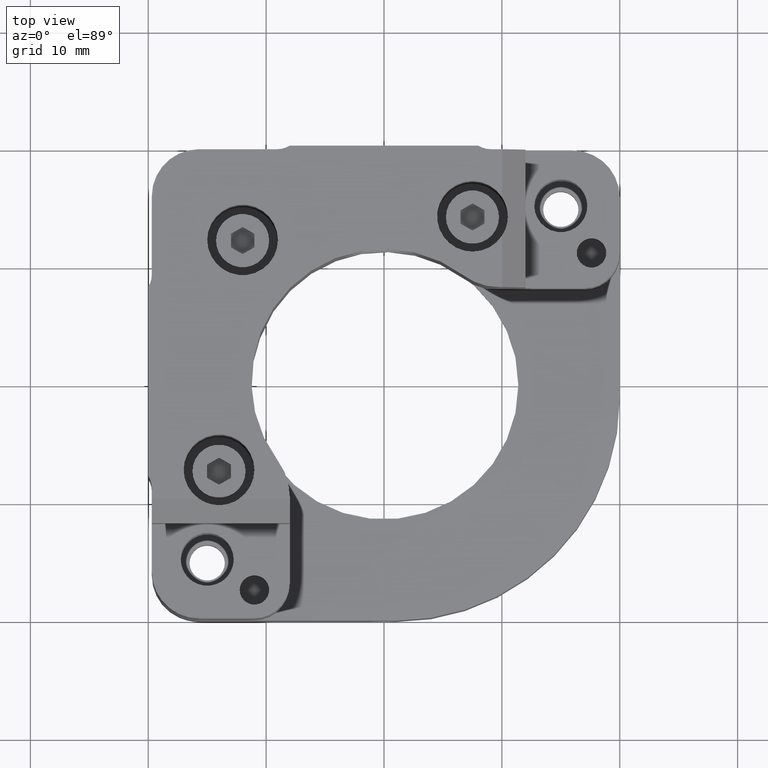
[diagram: clean part render]
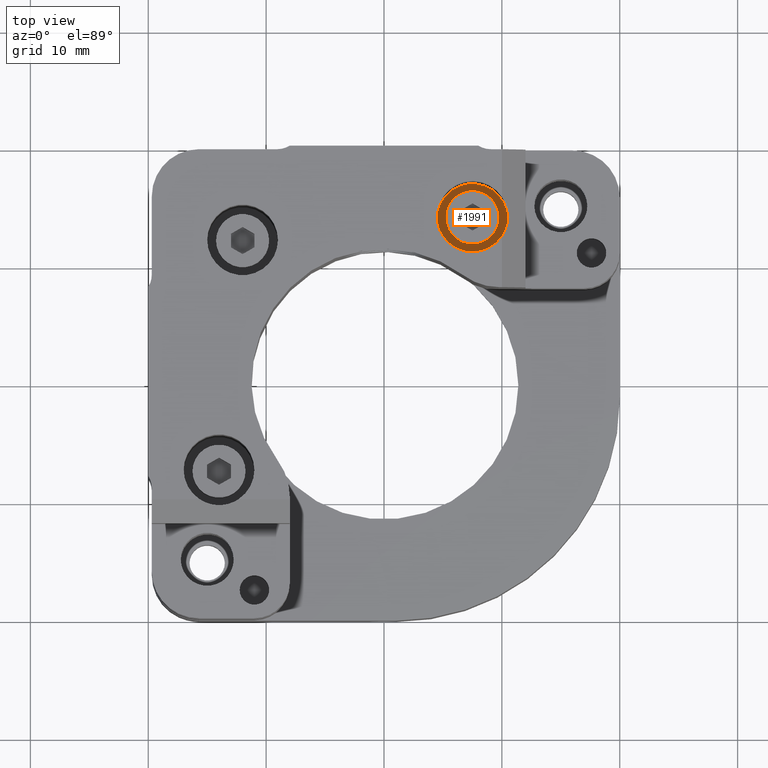
[diagram: same view with one face highlighted and labeled with its STEP entity id]
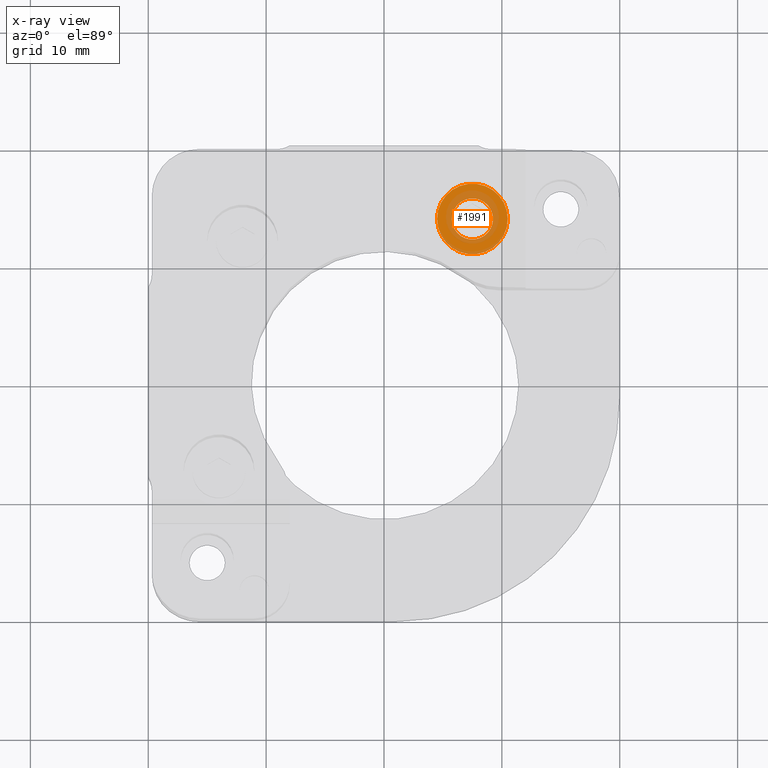
[diagram: x-ray of the same camera — body ghosted, the highlighted face saturated]
A machine part, top view. The second image highlights one B-rep face of the part: STEP entity #1991.
The next image is the same camera in x-ray: the body ghosted, the highlighted face saturated — about 42% of this face is hidden behind the body in this view.
In plain terms, the highlighted planar face has unit normal (0, 0, 1).
Its self-contained STEP definition (entity closure, byte-faithful):
#22 = CIRCLE ( 'NONE', #1641, 1.749999999999998890 ) ;
#163 = AXIS2_PLACEMENT_3D ( 'NONE', #961, #649, #3963 ) ;
#288 = EDGE_CURVE ( 'NONE', #1142, #1142, #22, .T. ) ;
#649 = DIRECTION ( 'NONE',  ( 0.000000000000000000, 0.000000000000000000, 1.000000000000000000 ) ) ;
#662 = ORIENTED_EDGE ( 'NONE', *, *, #288, .T. ) ;
#769 = DIRECTION ( 'NONE',  ( 0.000000000000000000, 0.000000000000000000, 1.000000000000000000 ) ) ;
#961 = CARTESIAN_POINT ( 'NONE',  ( 7.500000058899120248, 13.99999994110090107, 12.50000000000000000 ) ) ;
#969 = ORIENTED_EDGE ( 'NONE', *, *, #3972, .T. ) ;
#1142 = VERTEX_POINT ( 'NONE', #2978 ) ;
#1437 = FACE_BOUND ( 'NONE', #4532, .T. ) ;
#1641 = AXIS2_PLACEMENT_3D ( 'NONE', #2154, #3595, #3309 ) ;
#1991 = ADVANCED_FACE ( 'NONE', ( #4047, #1437 ), #2928, .T. ) ;
#2154 = CARTESIAN_POINT ( 'NONE',  ( 7.500000058899120248, 13.99999994110090107, 12.50000000000000000 ) ) ;
#2928 = PLANE ( 'NONE',  #163 ) ;
#2978 = CARTESIAN_POINT ( 'NONE',  ( 9.250000058899120248, 13.99999994110090107, 12.50000000000000000 ) ) ;
#3037 = CARTESIAN_POINT ( 'NONE',  ( 7.500000058899120248, 13.99999994110090107, 12.50000000000000000 ) ) ;
#3059 = DIRECTION ( 'NONE',  ( 1.000000000000000000, 0.000000000000000000, 0.000000000000000000 ) ) ;
#3257 = CIRCLE ( 'NONE', #3655, 3.000000000000000000 ) ;
#3309 = DIRECTION ( 'NONE',  ( 1.000000000000000000, 0.000000000000000000, 0.000000000000000000 ) ) ;
#3595 = DIRECTION ( 'NONE',  ( -0.000000000000000000, -0.000000000000000000, -1.000000000000000000 ) ) ;
#3655 = AXIS2_PLACEMENT_3D ( 'NONE', #3037, #769, #3059 ) ;
#3736 = EDGE_LOOP ( 'NONE', ( #969 ) ) ;
#3963 = DIRECTION ( 'NONE',  ( 1.000000000000000000, 0.000000000000000000, -0.000000000000000000 ) ) ;
#3972 = EDGE_CURVE ( 'NONE', #4663, #4663, #3257, .T. ) ;
#4047 = FACE_OUTER_BOUND ( 'NONE', #3736, .T. ) ;
#4304 = CARTESIAN_POINT ( 'NONE',  ( 10.50000005889912025, 13.99999994110090107, 12.50000000000000000 ) ) ;
#4532 = EDGE_LOOP ( 'NONE', ( #662 ) ) ;
#4663 = VERTEX_POINT ( 'NONE', #4304 ) ;